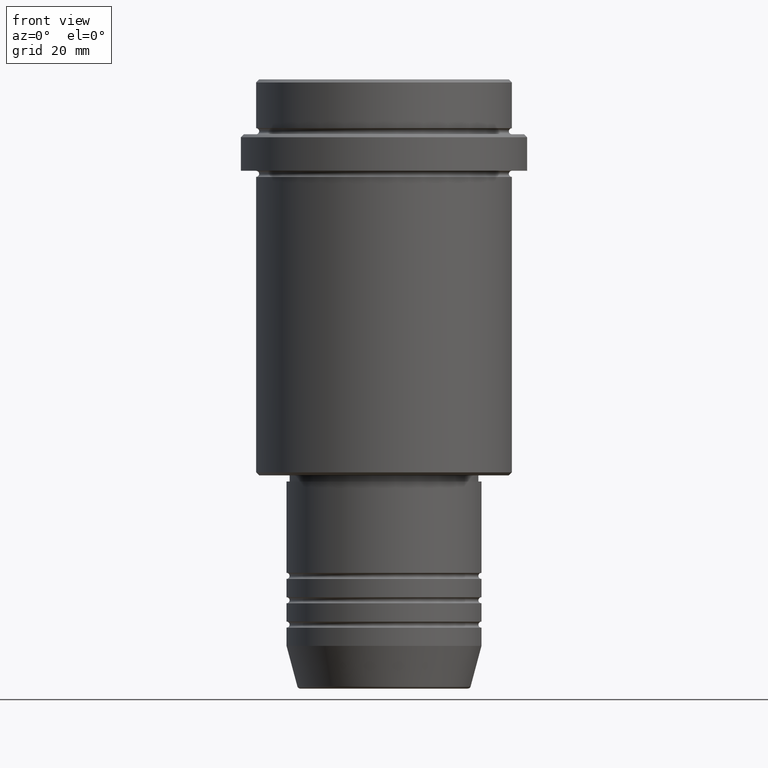
[diagram: clean part render]
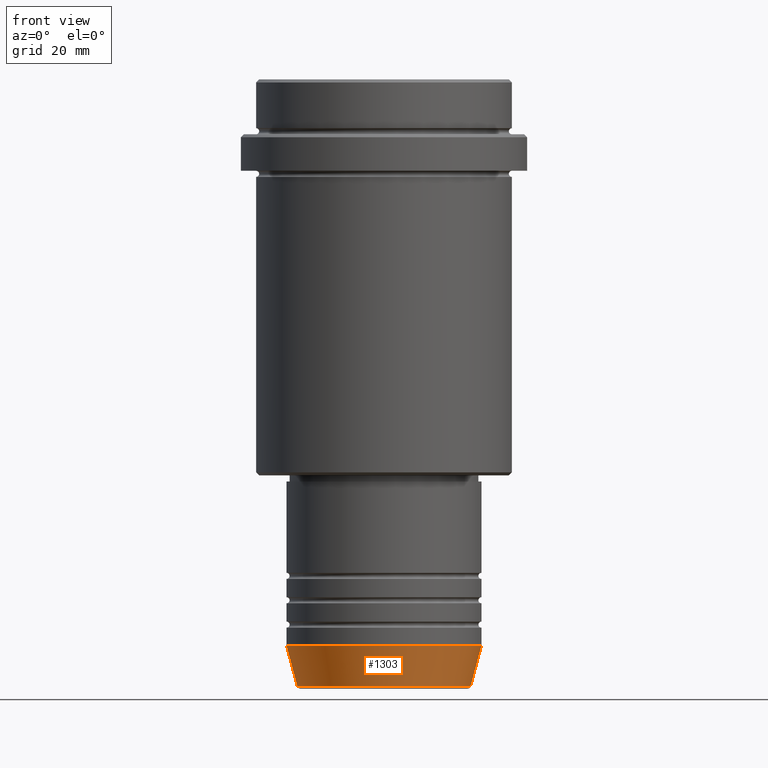
[diagram: same view with one face highlighted and labeled with its STEP entity id]
A machine part, front view. The second image highlights one B-rep face of the part: STEP entity #1303.
In plain terms, the highlighted conical surface has half-angle 15 deg.
Its self-contained STEP definition (entity closure, byte-faithful):
#18 = CIRCLE ( 'NONE', #287, 14.22365507213718949 ) ;
#48 = CARTESIAN_POINT ( 'NONE',  ( -16.00000000000000000, 1.959434878635765131E-15, -93.00000000000000000 ) ) ;
#58 = ORIENTED_EDGE ( 'NONE', *, *, #1255, .T. ) ;
#83 = CARTESIAN_POINT ( 'NONE',  ( 16.00000000000000000, 0.000000000000000000, -93.00000000000000000 ) ) ;
#103 = VERTEX_POINT ( 'NONE', #1130 ) ;
#219 = CARTESIAN_POINT ( 'NONE',  ( 0.000000000000000000, 0.000000000000000000, -99.62940952255127058 ) ) ;
#268 = ORIENTED_EDGE ( 'NONE', *, *, #691, .F. ) ;
#287 = AXIS2_PLACEMENT_3D ( 'NONE', #219, #320, #650 ) ;
#315 = EDGE_LOOP ( 'NONE', ( #268, #709, #58, #732 ) ) ;
#320 = DIRECTION ( 'NONE',  ( -0.000000000000000000, -0.000000000000000000, 1.000000000000000000 ) ) ;
#470 = AXIS2_PLACEMENT_3D ( 'NONE', #1107, #664, #766 ) ;
#592 = DIRECTION ( 'NONE',  ( -0.000000000000000000, -0.000000000000000000, 1.000000000000000000 ) ) ;
#633 = AXIS2_PLACEMENT_3D ( 'NONE', #1236, #592, #1034 ) ;
#650 = DIRECTION ( 'NONE',  ( 1.000000000000000000, 0.000000000000000000, 0.000000000000000000 ) ) ;
#664 = DIRECTION ( 'NONE',  ( -0.000000000000000000, -0.000000000000000000, 1.000000000000000000 ) ) ;
#691 = EDGE_CURVE ( 'NONE', #1291, #708, #914, .T. ) ;
#708 = VERTEX_POINT ( 'NONE', #48 ) ;
#709 = ORIENTED_EDGE ( 'NONE', *, *, #1415, .T. ) ;
#732 = ORIENTED_EDGE ( 'NONE', *, *, #1103, .F. ) ;
#766 = DIRECTION ( 'NONE',  ( 1.000000000000000000, 0.000000000000000000, 0.000000000000000000 ) ) ;
#860 = DIRECTION ( 'NONE',  ( 0.2588190451025213501, 0.000000000000000000, 0.9659258262890680902 ) ) ;
#874 = CARTESIAN_POINT ( 'NONE',  ( 14.22365507213718949, 0.000000000000000000, -99.62940952255127058 ) ) ;
#886 = VECTOR ( 'NONE', #860, 1000.000000000000000 ) ;
#914 = LINE ( 'NONE', #1145, #1114 ) ;
#920 = DIRECTION ( 'NONE',  ( -0.2588190451025213501, 3.169619151431772337E-17, 0.9659258262890680902 ) ) ;
#967 = LINE ( 'NONE', #83, #886 ) ;
#972 = FACE_OUTER_BOUND ( 'NONE', #315, .T. ) ;
#1034 = DIRECTION ( 'NONE',  ( 1.000000000000000000, 0.000000000000000000, 0.000000000000000000 ) ) ;
#1100 = CONICAL_SURFACE ( 'NONE', #470, 16.00000000000000000, 0.2617993877991500740 ) ;
#1103 = EDGE_CURVE ( 'NONE', #708, #103, #1388, .T. ) ;
#1107 = CARTESIAN_POINT ( 'NONE',  ( 0.000000000000000000, 0.000000000000000000, -93.00000000000000000 ) ) ;
#1114 = VECTOR ( 'NONE', #920, 1000.000000000000000 ) ;
#1130 = CARTESIAN_POINT ( 'NONE',  ( 16.00000000000000000, 0.000000000000000000, -93.00000000000000000 ) ) ;
#1145 = CARTESIAN_POINT ( 'NONE',  ( -16.00000000000000000, 1.959434878635765131E-15, -93.00000000000000000 ) ) ;
#1163 = CARTESIAN_POINT ( 'NONE',  ( -14.22365507213718949, 1.850665122131323337E-15, -99.62940952255127058 ) ) ;
#1236 = CARTESIAN_POINT ( 'NONE',  ( 0.000000000000000000, 0.000000000000000000, -93.00000000000000000 ) ) ;
#1255 = EDGE_CURVE ( 'NONE', #1299, #103, #967, .T. ) ;
#1291 = VERTEX_POINT ( 'NONE', #1163 ) ;
#1299 = VERTEX_POINT ( 'NONE', #874 ) ;
#1303 = ADVANCED_FACE ( 'NONE', ( #972 ), #1100, .T. ) ;
#1388 = CIRCLE ( 'NONE', #633, 16.00000000000000000 ) ;
#1415 = EDGE_CURVE ( 'NONE', #1291, #1299, #18, .T. ) ;